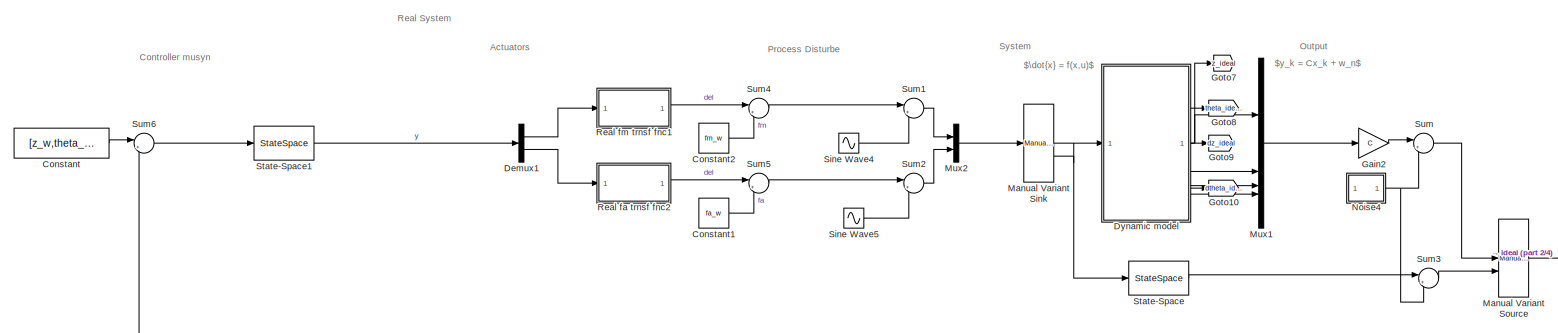
[diagram: root canvas - part 1/4, top center region]
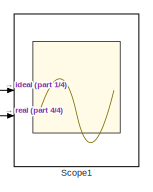
[diagram: root canvas - part 2/4, top right region]
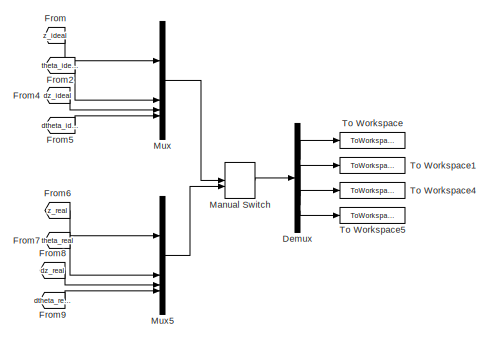
[diagram: root canvas - part 3/4, middle right region]
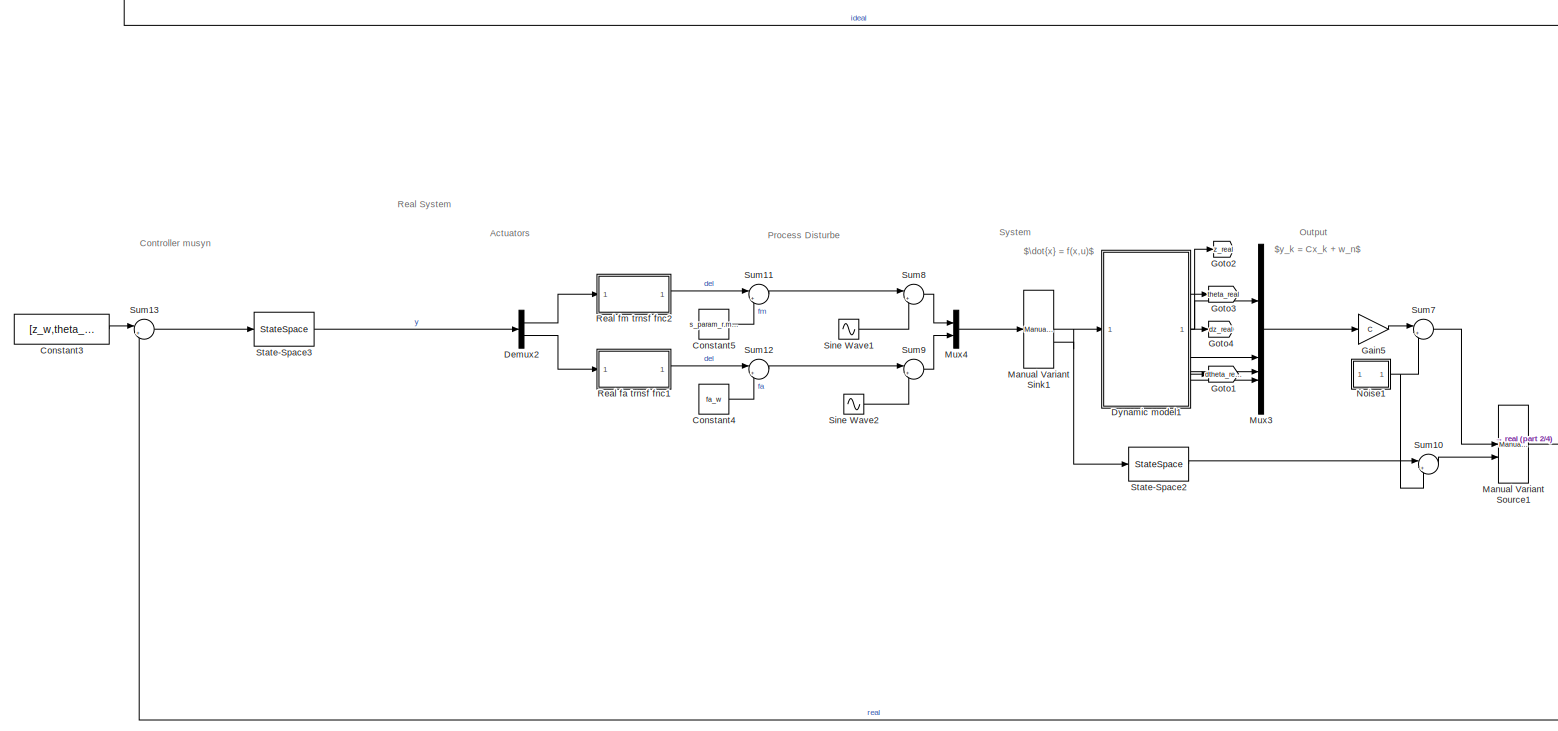
[diagram: root canvas - part 4/4, bottom center region]
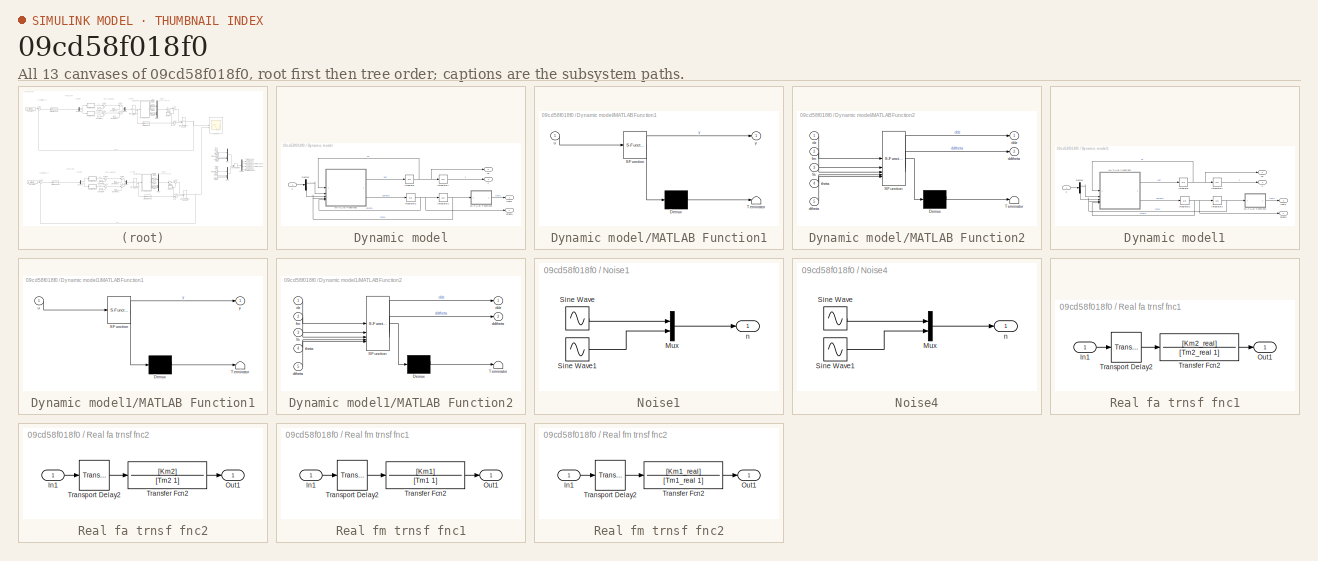
[diagram: thumbnail index - all 13 canvases of the model, root first then tree order]
MODEL slx_09cd58f018f0
KIND model
CONFIG AbsTol = auto
CONFIG EnableMultiTasking = off
CONFIG FixedStep = auto
CONFIG MaxStep = auto
CONFIG MinStep = auto
CONFIG RelTol = 1e-3
CONFIG SampleTimeConstraint = Unconstrained
CONFIG SolverName = VariableStepAuto
CONFIG StartTime = 0.0
CONFIG StopTime = 250
BLOCK [Constant] Constant
  Value = [z_w,theta_w]
BLOCK [Constant] Constant1
  Value = fa_w
BLOCK [Constant] Constant2
  Value = fm_w
BLOCK [Constant] Constant3
  Value = [z_w,theta_w]
BLOCK [Constant] Constant4
  Value = fa_w
BLOCK [Constant] Constant5
  Value = s_param_r.m*s_param.g%fm_w
BLOCK [Demux] Demux
BLOCK [Demux] Demux1
  Outputs = 2
BLOCK [Demux] Demux2
  Outputs = 2
BLOCK [SubSystem] Dynamic model
BLOCK [Demux] Dynamic model/Demux
  Outputs = 2
BLOCK [Integrator] Dynamic model/Integrator
  InitialCondition = dz_0
BLOCK [Integrator] Dynamic model/Integrator1
  InitialCondition = z_0_real
BLOCK [Integrator] Dynamic model/Integrator2
  InitialCondition = dtheta_0
BLOCK [Integrator] Dynamic model/Integrator3
  InitialCondition = theta_0_real
BLOCK [SubSystem] Dynamic model/MATLAB Function1
  ErrorFcn = Stateflow.Translate.translate
  PermitHierarchicalResolution = ExplicitOnly
  SFBlockType = MATLAB Function
  TreatAsAtomicUnit = on
BLOCK [Demux] Dynamic model/MATLAB Function1/ Demux 
  Outputs = 1
BLOCK [S-Function] Dynamic model/MATLAB Function1/ SFunction 
  EnableBusSupport = on
  FunctionName = sf_sfun
  PortCounts = [1 2]
  SFcnIsStateOwnerBlock = off
  SFunctionDeploymentMode = off
  Tag = Stateflow S-Function 7
BLOCK [Terminator] Dynamic model/MATLAB Function1/ Terminator 
BLOCK [Inport] Dynamic model/MATLAB Function1/u
BLOCK [Outport] Dynamic model/MATLAB Function1/y
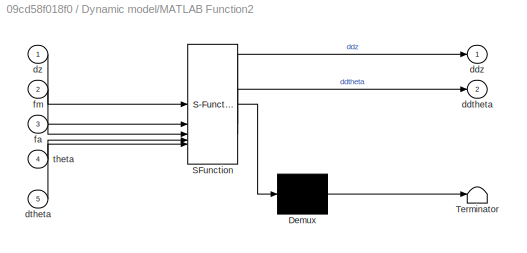
BLOCK [SubSystem] Dynamic model/MATLAB Function2
  ErrorFcn = Stateflow.Translate.translate
  PermitHierarchicalResolution = ExplicitOnly
  SFBlockType = MATLAB Function
  TreatAsAtomicUnit = on
BLOCK [Demux] Dynamic model/MATLAB Function2/ Demux 
  Outputs = 1
BLOCK [S-Function] Dynamic model/MATLAB Function2/ SFunction 
  EnableBusSupport = on
  FunctionName = sf_sfun
  Parameters = s_param
  PortCounts = [5 3]
  SFcnIsStateOwnerBlock = off
  SFunctionDeploymentMode = off
  Tag = Stateflow S-Function 2
BLOCK [Terminator] Dynamic model/MATLAB Function2/ Terminator 
BLOCK [Outport] Dynamic model/MATLAB Function2/ddtheta
  Port = 2
BLOCK [Outport] Dynamic model/MATLAB Function2/ddz
BLOCK [Inport] Dynamic model/MATLAB Function2/dtheta
  Port = 5
BLOCK [Inport] Dynamic model/MATLAB Function2/dz
BLOCK [Inport] Dynamic model/MATLAB Function2/fa
  Port = 3
BLOCK [Inport] Dynamic model/MATLAB Function2/fm
  Port = 2
BLOCK [Inport] Dynamic model/MATLAB Function2/theta
  Port = 4
BLOCK [Outport] Dynamic model/dtheta
  Port = 4
BLOCK [Outport] Dynamic model/dz
  Port = 3
BLOCK [Outport] Dynamic model/theta
  Port = 2
BLOCK [Inport] Dynamic model/u
BLOCK [Outport] Dynamic model/z
BLOCK [SubSystem] Dynamic model1
BLOCK [Demux] Dynamic model1/Demux
  Outputs = 2
BLOCK [Integrator] Dynamic model1/Integrator
  InitialCondition = dz_0
BLOCK [Integrator] Dynamic model1/Integrator1
  InitialCondition = z_0_real
BLOCK [Integrator] Dynamic model1/Integrator2
  InitialCondition = dtheta_0
BLOCK [Integrator] Dynamic model1/Integrator3
  InitialCondition = theta_0_real
BLOCK [SubSystem] Dynamic model1/MATLAB Function1
  ErrorFcn = Stateflow.Translate.translate
  PermitHierarchicalResolution = ExplicitOnly
  SFBlockType = MATLAB Function
  TreatAsAtomicUnit = on
BLOCK [Demux] Dynamic model1/MATLAB Function1/ Demux 
  Outputs = 1
BLOCK [S-Function] Dynamic model1/MATLAB Function1/ SFunction 
  EnableBusSupport = on
  FunctionName = sf_sfun
  PortCounts = [1 2]
  SFcnIsStateOwnerBlock = off
  SFunctionDeploymentMode = off
  Tag = Stateflow S-Function 1
BLOCK [Terminator] Dynamic model1/MATLAB Function1/ Terminator 
BLOCK [Inport] Dynamic model1/MATLAB Function1/u
BLOCK [Outport] Dynamic model1/MATLAB Function1/y
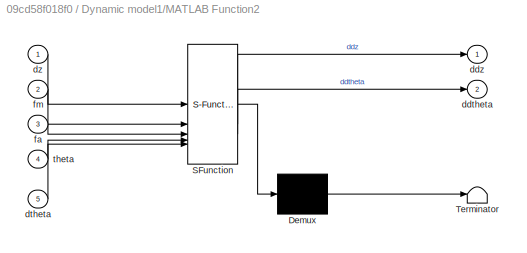
BLOCK [SubSystem] Dynamic model1/MATLAB Function2
  ErrorFcn = Stateflow.Translate.translate
  PermitHierarchicalResolution = ExplicitOnly
  SFBlockType = MATLAB Function
  TreatAsAtomicUnit = on
BLOCK [Demux] Dynamic model1/MATLAB Function2/ Demux 
  Outputs = 1
BLOCK [S-Function] Dynamic model1/MATLAB Function2/ SFunction 
  EnableBusSupport = on
  FunctionName = sf_sfun
  Parameters = s_param,s_param_r
  PortCounts = [5 3]
  SFcnIsStateOwnerBlock = off
  SFunctionDeploymentMode = off
  Tag = Stateflow S-Function 3
BLOCK [Terminator] Dynamic model1/MATLAB Function2/ Terminator 
BLOCK [Outport] Dynamic model1/MATLAB Function2/ddtheta
  Port = 2
BLOCK [Outport] Dynamic model1/MATLAB Function2/ddz
BLOCK [Inport] Dynamic model1/MATLAB Function2/dtheta
  Port = 5
BLOCK [Inport] Dynamic model1/MATLAB Function2/dz
BLOCK [Inport] Dynamic model1/MATLAB Function2/fa
  Port = 3
BLOCK [Inport] Dynamic model1/MATLAB Function2/fm
  Port = 2
BLOCK [Inport] Dynamic model1/MATLAB Function2/theta
  Port = 4
BLOCK [Outport] Dynamic model1/dtheta
  Port = 4
BLOCK [Outport] Dynamic model1/dz
  Port = 3
BLOCK [Outport] Dynamic model1/theta
  Port = 2
BLOCK [Inport] Dynamic model1/u
BLOCK [Outport] Dynamic model1/z
BLOCK [From] From
  GotoTag = z_ideal
BLOCK [From] From2
  GotoTag = theta_ideal
BLOCK [From] From4
  GotoTag = dz_ideal
BLOCK [From] From5
  GotoTag = dtheta_ideal
BLOCK [From] From6
  GotoTag = z_real
BLOCK [From] From7
  GotoTag = theta_real
BLOCK [From] From8
  GotoTag = dz_real
BLOCK [From] From9
  GotoTag = dtheta_real
BLOCK [Gain] Gain2
  Gain = C
  Multiplication = Matrix(K*u)
BLOCK [Gain] Gain5
  Gain = C
  Multiplication = Matrix(K*u)
BLOCK [Goto] Goto1
  GotoTag = dtheta_real
BLOCK [Goto] Goto10
  GotoTag = dtheta_ideal
BLOCK [Goto] Goto2
  GotoTag = z_real
BLOCK [Goto] Goto3
  GotoTag = theta_real
BLOCK [Goto] Goto4
  GotoTag = dz_real
BLOCK [Goto] Goto7
  GotoTag = z_ideal
BLOCK [Goto] Goto8
  GotoTag = theta_ideal
BLOCK [Goto] Goto9
  GotoTag = dz_ideal
BLOCK [ManualSwitch] Manual Switch
  CurrentSetting = 0
BLOCK [Reference] Manual Variant Sink  REF=simulink/Signal
Routing/Manual
Variant Sink
  SourceBlock = simulink/Signal\nRouting/Manual\nVariant Sink
  SourceType = ManualVariantSink
BLOCK [Reference] Manual Variant Sink1  REF=simulink/Signal
Routing/Manual
Variant Sink
  SourceBlock = simulink/Signal\nRouting/Manual\nVariant Sink
  SourceType = ManualVariantSink
BLOCK [Reference] Manual Variant Source  REF=simulink/Signal
Routing/Manual
Variant Source
  SourceBlock = simulink/Signal\nRouting/Manual\nVariant Source
  SourceType = ManualVariantSource
BLOCK [Reference] Manual Variant Source1  REF=simulink/Signal
Routing/Manual
Variant Source
  SourceBlock = simulink/Signal\nRouting/Manual\nVariant Source
  SourceType = ManualVariantSource
BLOCK [Mux] Mux
  DisplayOption = bar
BLOCK [Mux] Mux1
  DisplayOption = bar
BLOCK [Mux] Mux2
  DisplayOption = bar
  Inputs = 2
BLOCK [Mux] Mux3
  DisplayOption = bar
BLOCK [Mux] Mux4
  DisplayOption = bar
  Inputs = 2
BLOCK [Mux] Mux5
  DisplayOption = bar
BLOCK [SubSystem] Noise1
BLOCK [Mux] Noise1/Mux
  DisplayOption = bar
  Inputs = 2
BLOCK [Sin] Noise1/Sine Wave
  Amplitude = randn(1,1)*std_dev.y1
  Frequency = omega_y1*10
  SampleTime = 0
BLOCK [Sin] Noise1/Sine Wave1
  Amplitude = randn(1,1)*std_dev.y2
  Frequency = omega_y2*10
  SampleTime = 0
BLOCK [Outport] Noise1/n
BLOCK [SubSystem] Noise4
BLOCK [Mux] Noise4/Mux
  DisplayOption = bar
  Inputs = 2
BLOCK [Sin] Noise4/Sine Wave
  Amplitude = randn(1,1)*std_dev.y1
  Frequency = omega_y1*10
  SampleTime = 0
BLOCK [Sin] Noise4/Sine Wave1
  Amplitude = randn(1,1)*std_dev.y2
  Frequency = omega_y2*10
  SampleTime = 0
BLOCK [Outport] Noise4/n
BLOCK [SubSystem] Real fa trnsf fnc1
BLOCK [Inport] Real fa trnsf fnc1/In1
BLOCK [Outport] Real fa trnsf fnc1/Out1
BLOCK [TransferFcn] Real fa trnsf fnc1/Transfer Fcn2
  Denominator = [Tm2_real 1]
  Numerator = [Km2_real]
BLOCK [TransportDelay] Real fa trnsf fnc1/Transport Delay2
  DelayTime = T2_real
BLOCK [SubSystem] Real fa trnsf fnc2
BLOCK [Inport] Real fa trnsf fnc2/In1
BLOCK [Outport] Real fa trnsf fnc2/Out1
BLOCK [TransferFcn] Real fa trnsf fnc2/Transfer Fcn2
  Denominator = [Tm2 1]
  Numerator = [Km2]
BLOCK [TransportDelay] Real fa trnsf fnc2/Transport Delay2
  DelayTime = T2
BLOCK [SubSystem] Real fm trnsf fnc1
BLOCK [Inport] Real fm trnsf fnc1/In1
BLOCK [Outport] Real fm trnsf fnc1/Out1
BLOCK [TransferFcn] Real fm trnsf fnc1/Transfer Fcn2
  Denominator = [Tm1 1]
  Numerator = [Km1]
BLOCK [TransportDelay] Real fm trnsf fnc1/Transport Delay2
  DelayTime = T1
BLOCK [SubSystem] Real fm trnsf fnc2
BLOCK [Inport] Real fm trnsf fnc2/In1
BLOCK [Outport] Real fm trnsf fnc2/Out1
BLOCK [TransferFcn] Real fm trnsf fnc2/Transfer Fcn2
  Denominator = [Tm1_real 1]
  Numerator = [Km1_real]
BLOCK [TransportDelay] Real fm trnsf fnc2/Transport Delay2
  DelayTime = T1_real
BLOCK [Scope] Scope1
  Floating = off
  NumInputPorts = 2
  ScopeSpecificationString = Simulink.scopes.TimeScopeBlockCfg('CurrentConfiguration', extmgr.ConfigurationSet(extmgr.Configuration('Core','General UI',true),extmgr.Configuration('Core','Source UI',true),extmgr.Configuration('Sources','WiredSimulink',true,'DataLoggingVariableName','ScopeData1'),extmgr.Configuration('Visuals','Time Domain',true,'SerializedDisplays',{struct('MinYLimReal','-47.73683','MaxYLimReal','429.45814','Y...<+1488ch>
BLOCK [Sin] Sine Wave1
  Amplitude = rand(1,1)*std_dev.fm
  Frequency = omega_d1
  SampleTime = 0
BLOCK [Sin] Sine Wave2
  Amplitude = rand(1,1)*std_dev.fa
  Frequency = omega_d2
  SampleTime = 0
BLOCK [Sin] Sine Wave4
  Amplitude = rand(1,1)*std_dev.fm
  Frequency = omega_d1
  SampleTime = 0
BLOCK [Sin] Sine Wave5
  Amplitude = rand(1,1)*std_dev.fa
  Frequency = omega_d2
  SampleTime = 0
BLOCK [StateSpace] State-Space
  InitialCondition = 0
BLOCK [StateSpace] State-Space1
  A = K.A
  B = K.B
  C = K.C
  D = K.D
  InitialCondition = 0
BLOCK [StateSpace] State-Space2
  InitialCondition = 0
BLOCK [StateSpace] State-Space3
  A = K.A
  B = K.B
  C = K.C
  D = K.D
  InitialCondition = 0
BLOCK [Sum] Sum
  Inputs = |++
BLOCK [Sum] Sum1
  Inputs = |++
BLOCK [Sum] Sum10
  Inputs = |++
BLOCK [Sum] Sum11
  Inputs = |++
BLOCK [Sum] Sum12
  Inputs = |++
BLOCK [Sum] Sum13
  Inputs = |+-
BLOCK [Sum] Sum2
  Inputs = |++
BLOCK [Sum] Sum3
  Inputs = |++
BLOCK [Sum] Sum4
  Inputs = |++
BLOCK [Sum] Sum5
  Inputs = |++
BLOCK [Sum] Sum6
  Inputs = |+-
BLOCK [Sum] Sum7
  Inputs = |++
BLOCK [Sum] Sum8
  Inputs = |++
BLOCK [Sum] Sum9
  Inputs = |++
BLOCK [ToWorkspace] To Workspace
  FixptAsFi = on
  MaxDataPoints = inf
  SampleTime = -1
  SaveFormat = Timeseries
  VariableName = z
BLOCK [ToWorkspace] To Workspace1
  FixptAsFi = on
  MaxDataPoints = inf
  SampleTime = -1
  SaveFormat = Timeseries
  VariableName = theta
BLOCK [ToWorkspace] To Workspace4
  FixptAsFi = on
  MaxDataPoints = inf
  SampleTime = -1
  SaveFormat = Timeseries
  VariableName = dz
BLOCK [ToWorkspace] To Workspace5
  FixptAsFi = on
  MaxDataPoints = inf
  SampleTime = -1
  SaveFormat = Timeseries
  VariableName = dtheta
ANNOTATION (root): $\dot{x} = f(x,u)$
ANNOTATION (root): $y_k = Cx_k + w_n$
ANNOTATION (root): Actuators
ANNOTATION (root): Controller musyn
ANNOTATION (root): Output
ANNOTATION (root): Process Disturbe
ANNOTATION (root): Real System
ANNOTATION (root): System
LINE Constant1:1 -> Sum5:2
LINE Constant2:1 -> Sum4:2
LINE Constant3:1 -> Sum13:1
LINE Constant4:1 -> Sum12:2
LINE Constant5:1 -> Sum11:2
LINE Constant:1 -> Sum6:1
LINE Demux1:1 -> Real fm trnsf fnc1:1
LINE Demux1:2 -> Real fa trnsf fnc2:1
LINE Demux2:1 -> Real fm trnsf fnc2:1
LINE Demux2:2 -> Real fa trnsf fnc1:1
LINE Demux:1 -> To Workspace:1
LINE Demux:2 -> To Workspace1:1
LINE Demux:3 -> To Workspace4:1
LINE Demux:4 -> To Workspace5:1
LINE Dynamic model/Demux:1 -> Dynamic model/MATLAB Function2:2
LINE Dynamic model/Demux:2 -> Dynamic model/MATLAB Function2:3
LINE Dynamic model/Integrator1:1 -> Dynamic model/z:1
NET Dynamic model/Integrator2:1 -> Dynamic model/Integrator3:1, Dynamic model/MATLAB Function2:5, Dynamic model/dtheta:1
NET Dynamic model/Integrator3:1 -> Dynamic model/MATLAB Function1:1, Dynamic model/MATLAB Function2:4
NET Dynamic model/Integrator:1 -> Dynamic model/Integrator1:1, Dynamic model/MATLAB Function2:1, Dynamic model/dz:1
LINE Dynamic model/MATLAB Function1:1 -> Dynamic model/theta:1
LINE Dynamic model/MATLAB Function2:1 -> Dynamic model/Integrator:1
LINE Dynamic model/MATLAB Function2:2 -> Dynamic model/Integrator2:1
LINE Dynamic model/u:1 -> Dynamic model/Demux:1
LINE Dynamic model1/Demux:1 -> Dynamic model1/MATLAB Function2:2
LINE Dynamic model1/Demux:2 -> Dynamic model1/MATLAB Function2:3
LINE Dynamic model1/Integrator1:1 -> Dynamic model1/z:1
NET Dynamic model1/Integrator2:1 -> Dynamic model1/Integrator3:1, Dynamic model1/MATLAB Function2:5, Dynamic model1/dtheta:1
NET Dynamic model1/Integrator3:1 -> Dynamic model1/MATLAB Function1:1, Dynamic model1/MATLAB Function2:4
NET Dynamic model1/Integrator:1 -> Dynamic model1/Integrator1:1, Dynamic model1/MATLAB Function2:1, Dynamic model1/dz:1
LINE Dynamic model1/MATLAB Function1:1 -> Dynamic model1/theta:1
LINE Dynamic model1/MATLAB Function2:1 -> Dynamic model1/Integrator:1
LINE Dynamic model1/MATLAB Function2:2 -> Dynamic model1/Integrator2:1
LINE Dynamic model1/u:1 -> Dynamic model1/Demux:1
NET Dynamic model1:1 -> Goto2:1, Mux3:1
NET Dynamic model1:2 -> Goto3:1, Mux3:2
NET Dynamic model1:3 -> Goto4:1, Mux3:3
NET Dynamic model1:4 -> Goto1:1, Mux3:4
NET Dynamic model:1 -> Goto7:1, Mux1:1
NET Dynamic model:2 -> Goto8:1, Mux1:2
NET Dynamic model:3 -> Goto9:1, Mux1:3
NET Dynamic model:4 -> Goto10:1, Mux1:4
LINE From2:1 -> Mux:2
LINE From4:1 -> Mux:3
LINE From5:1 -> Mux:4
LINE From6:1 -> Mux5:1
LINE From7:1 -> Mux5:2
LINE From8:1 -> Mux5:3
LINE From9:1 -> Mux5:4
LINE From:1 -> Mux:1
LINE Gain2:1 -> Sum:1
LINE Gain5:1 -> Sum7:1
LINE Manual Switch:1 -> Demux:1
LINE Manual Variant Sink1:1 -> Dynamic model1:1
LINE Manual Variant Sink1:2 -> State-Space2:1
LINE Manual Variant Sink:1 -> Dynamic model:1
LINE Manual Variant Sink:2 -> State-Space:1
NET Manual Variant Source1:1 -> Scope1:2, Sum13:2
NET Manual Variant Source:1 -> Scope1:1, Sum6:2
LINE Mux1:1 -> Gain2:1
LINE Mux2:1 -> Manual Variant Sink:1
LINE Mux3:1 -> Gain5:1
LINE Mux4:1 -> Manual Variant Sink1:1
LINE Mux5:1 -> Manual Switch:2
LINE Mux:1 -> Manual Switch:1
LINE Noise1/Mux:1 -> Noise1/n:1
LINE Noise1/Sine Wave1:1 -> Noise1/Mux:2
LINE Noise1/Sine Wave:1 -> Noise1/Mux:1
NET Noise1:1 -> Sum10:2, Sum7:2
LINE Noise4/Mux:1 -> Noise4/n:1
LINE Noise4/Sine Wave1:1 -> Noise4/Mux:2
LINE Noise4/Sine Wave:1 -> Noise4/Mux:1
NET Noise4:1 -> Sum3:2, Sum:2
LINE Real fa trnsf fnc1/In1:1 -> Real fa trnsf fnc1/Transport Delay2:1
LINE Real fa trnsf fnc1/Transfer Fcn2:1 -> Real fa trnsf fnc1/Out1:1
LINE Real fa trnsf fnc1/Transport Delay2:1 -> Real fa trnsf fnc1/Transfer Fcn2:1
LINE Real fa trnsf fnc1:1 -> Sum12:1
LINE Real fa trnsf fnc2/In1:1 -> Real fa trnsf fnc2/Transport Delay2:1
LINE Real fa trnsf fnc2/Transfer Fcn2:1 -> Real fa trnsf fnc2/Out1:1
LINE Real fa trnsf fnc2/Transport Delay2:1 -> Real fa trnsf fnc2/Transfer Fcn2:1
LINE Real fa trnsf fnc2:1 -> Sum5:1
LINE Real fm trnsf fnc1/In1:1 -> Real fm trnsf fnc1/Transport Delay2:1
LINE Real fm trnsf fnc1/Transfer Fcn2:1 -> Real fm trnsf fnc1/Out1:1
LINE Real fm trnsf fnc1/Transport Delay2:1 -> Real fm trnsf fnc1/Transfer Fcn2:1
LINE Real fm trnsf fnc1:1 -> Sum4:1
LINE Real fm trnsf fnc2/In1:1 -> Real fm trnsf fnc2/Transport Delay2:1
LINE Real fm trnsf fnc2/Transfer Fcn2:1 -> Real fm trnsf fnc2/Out1:1
LINE Real fm trnsf fnc2/Transport Delay2:1 -> Real fm trnsf fnc2/Transfer Fcn2:1
LINE Real fm trnsf fnc2:1 -> Sum11:1
LINE Sine Wave1:1 -> Sum8:2
LINE Sine Wave2:1 -> Sum9:2
LINE Sine Wave4:1 -> Sum1:2
LINE Sine Wave5:1 -> Sum2:2
LINE State-Space1:1 -> Demux1:1
LINE State-Space2:1 -> Sum10:1
LINE State-Space3:1 -> Demux2:1
LINE State-Space:1 -> Sum3:1
LINE Sum10:1 -> Manual Variant Source1:2
LINE Sum11:1 -> Sum8:1
LINE Sum12:1 -> Sum9:1
LINE Sum13:1 -> State-Space3:1
LINE Sum1:1 -> Mux2:1
LINE Sum2:1 -> Mux2:2
LINE Sum3:1 -> Manual Variant Source:2
LINE Sum4:1 -> Sum1:1
LINE Sum5:1 -> Sum2:1
LINE Sum6:1 -> State-Space1:1
LINE Sum7:1 -> Manual Variant Source1:1
LINE Sum8:1 -> Mux4:1
LINE Sum9:1 -> Mux4:2
LINE Sum:1 -> Manual Variant Source:1
note: NET lines group one-source signal fan-out (src -> all destinations, sorted); 1:1 wires keep LINE
CHART Dynamic model1/MATLAB Function1 states=1 transitions=1
  STATE_LABEL 'eML_blk_kernel()'
  STATE_LABEL 'SCRIPT:\nfunction y = fcn(u)\n\ny = atan2(sin(u), cos(u));\nend'
CHART Dynamic model/MATLAB Function2 states=1 transitions=1
  STATE_LABEL 'eML_blk_kernel()'
  STATE_LABEL 'SCRIPT:\nfunction [ddz, ddtheta] = fcn(dz, fm, fa, theta, dtheta, s_param)\n\n% Rename params\nJ = s_param.J;     \nm = s_param.m;     \nb = s_param.b;      \nbeta = s_param.beta;    \ng = s_param.g;     \nl = s_param.l;   \n\n%% Dynamic equations\n\nddz = -b/m * dz + fm/m * cos(theta) -g;\nddtheta = -beta/J * dtheta + 2 * l/J * fa;\n\nend\n'
CHART Dynamic model1/MATLAB Function2 states=1 transitions=1
  STATE_LABEL 'eML_blk_kernel()'
  STATE_LABEL 'SCRIPT:\nfunction [ddz, ddtheta] = fcn(dz, fm, fa, theta, dtheta, s_param, s_param_r)\n\n% Rename params\nJ = s_param_r.J;     \nm = s_param_r.m;     \nb = s_param_r.b;      \nbeta = s_param_r.beta;    \ng = s_param.g;     \nl = s_param_r.l;   \n\n%% Dynamic equations\n\nddz = -b/m * dz + fm/m * cos(theta)-g;\nddtheta = -beta/J * dtheta + 2 * l/J * fa;\n\nend\n'
CHART Dynamic model/MATLAB Function1 states=1 transitions=1
  STATE_LABEL 'eML_blk_kernel()'
  STATE_LABEL 'SCRIPT:\nfunction y = fcn(u)\n\ny = atan2(sin(u), cos(u));\nend'
CHART  states=0 transitions=0
CHART  states=0 transitions=0
CHART  states=0 transitions=0
CHART  states=0 transitions=0
